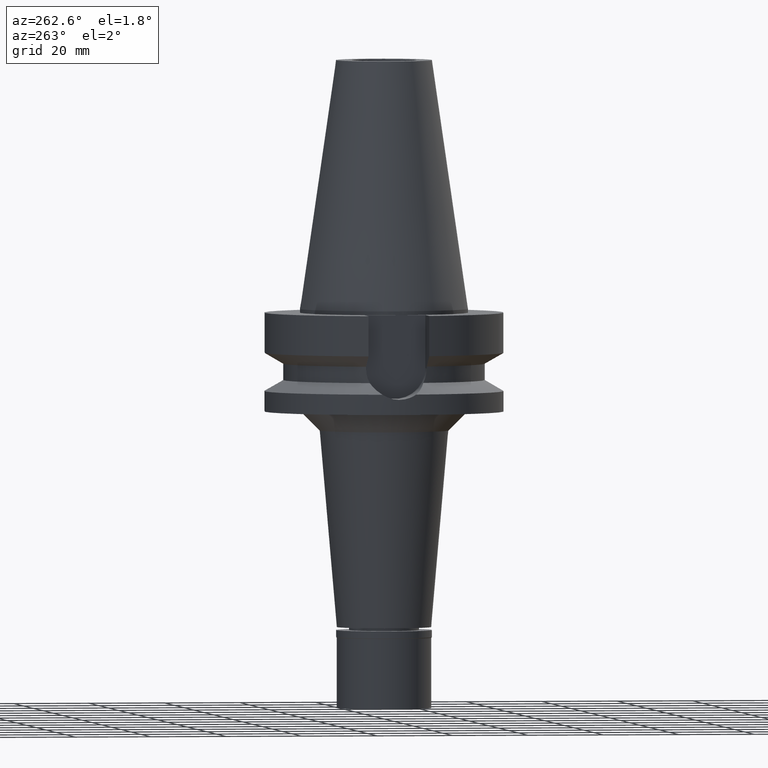
[diagram: clean part render]
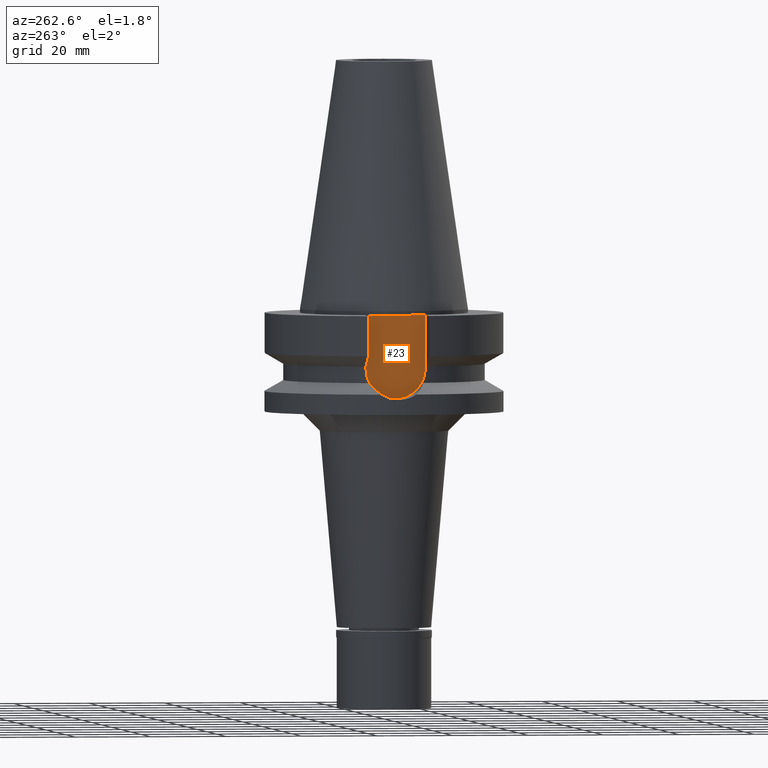
[diagram: same view with one face highlighted and labeled with its STEP entity id]
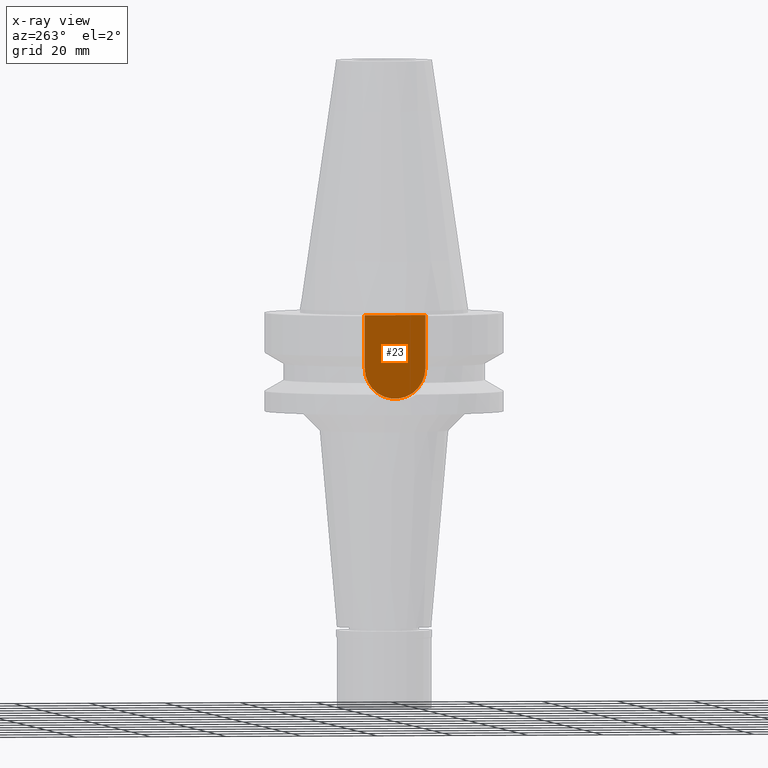
[diagram: x-ray of the same camera — body ghosted, the highlighted face saturated]
A machine part, auxiliary view. The second image highlights one B-rep face of the part: STEP entity #23.
The next image is the same camera in x-ray: the body ghosted, the highlighted face saturated — about 0% of this face is hidden behind the body in this view.
In plain terms, the highlighted planar face has unit normal (-1, 0, 0).
Its self-contained STEP definition (entity closure, byte-faithful):
#23 = ADVANCED_FACE ( 'NONE', ( #766 ), #2222, .T. ) ;
#171 = VECTOR ( 'NONE', #458, 1000.000000000000000 ) ;
#261 = CARTESIAN_POINT ( 'NONE',  ( -22.50000000000000000, 2.173748068486999793E-14, 0.0000000000000000000 ) ) ;
#296 = ORIENTED_EDGE ( 'NONE', *, *, #1157, .F. ) ;
#333 = ORIENTED_EDGE ( 'NONE', *, *, #1614, .F. ) ;
#440 = AXIS2_PLACEMENT_3D ( 'NONE', #261, #2954, #2028 ) ;
#458 = DIRECTION ( 'NONE',  ( 0.0000000000000000000, 0.0000000000000000000, 1.000000000000000000 ) ) ;
#525 = CARTESIAN_POINT ( 'NONE',  ( -22.50000000000000000, 8.050000000000000711, -14.94999999999999929 ) ) ;
#665 = VERTEX_POINT ( 'NONE', #1825 ) ;
#669 = LINE ( 'NONE', #1885, #2225 ) ;
#681 = CIRCLE ( 'NONE', #1099, 8.050000000000000711 ) ;
#696 = DIRECTION ( 'NONE',  ( 1.000000000000000000, 0.0000000000000000000, 0.0000000000000000000 ) ) ;
#766 = FACE_OUTER_BOUND ( 'NONE', #2568, .T. ) ;
#938 = DIRECTION ( 'NONE',  ( 0.0000000000000000000, 0.0000000000000000000, -1.000000000000000000 ) ) ;
#1042 = ORIENTED_EDGE ( 'NONE', *, *, #1844, .T. ) ;
#1046 = VERTEX_POINT ( 'NONE', #2776 ) ;
#1099 = AXIS2_PLACEMENT_3D ( 'NONE', #1732, #696, #2909 ) ;
#1157 = EDGE_CURVE ( 'NONE', #3114, #665, #681, .T. ) ;
#1185 = CARTESIAN_POINT ( 'NONE',  ( -22.50000000000000000, -8.050000000000000711, -1.000000000000000000 ) ) ;
#1265 = ORIENTED_EDGE ( 'NONE', *, *, #2710, .F. ) ;
#1435 = LINE ( 'NONE', #525, #171 ) ;
#1450 = VECTOR ( 'NONE', #938, 1000.000000000000000 ) ;
#1614 = EDGE_CURVE ( 'NONE', #665, #2243, #1435, .T. ) ;
#1732 = CARTESIAN_POINT ( 'NONE',  ( -22.50000000000000000, 1.807578675540999863E-14, -14.94999999999999929 ) ) ;
#1825 = CARTESIAN_POINT ( 'NONE',  ( -22.50000000000000000, 8.050000000000000711, -14.94999999999999929 ) ) ;
#1844 = EDGE_CURVE ( 'NONE', #1046, #2243, #669, .T. ) ;
#1885 = CARTESIAN_POINT ( 'NONE',  ( -22.50000000000000000, -8.050000000000000711, -1.000000000000000000 ) ) ;
#2028 = DIRECTION ( 'NONE',  ( 0.0000000000000000000, 0.0000000000000000000, 1.000000000000000000 ) ) ;
#2041 = CARTESIAN_POINT ( 'NONE',  ( -22.50000000000000000, 8.050000000000000711, -1.000000000000000000 ) ) ;
#2222 = PLANE ( 'NONE',  #440 ) ;
#2225 = VECTOR ( 'NONE', #2793, 1000.000000000000000 ) ;
#2243 = VERTEX_POINT ( 'NONE', #2041 ) ;
#2568 = EDGE_LOOP ( 'NONE', ( #333, #296, #1265, #1042 ) ) ;
#2643 = LINE ( 'NONE', #1185, #1450 ) ;
#2710 = EDGE_CURVE ( 'NONE', #1046, #3114, #2643, .T. ) ;
#2776 = CARTESIAN_POINT ( 'NONE',  ( -22.50000000000000000, -8.050000000000000711, -1.000000000000000000 ) ) ;
#2793 = DIRECTION ( 'NONE',  ( 0.0000000000000000000, 1.000000000000000000, 0.0000000000000000000 ) ) ;
#2909 = DIRECTION ( 'NONE',  ( 0.0000000000000000000, 0.0000000000000000000, -1.000000000000000000 ) ) ;
#2954 = DIRECTION ( 'NONE',  ( -1.000000000000000000, 0.0000000000000000000, 0.0000000000000000000 ) ) ;
#3107 = CARTESIAN_POINT ( 'NONE',  ( -22.50000000000000000, -8.050000000000000711, -14.94999999999999929 ) ) ;
#3114 = VERTEX_POINT ( 'NONE', #3107 ) ;